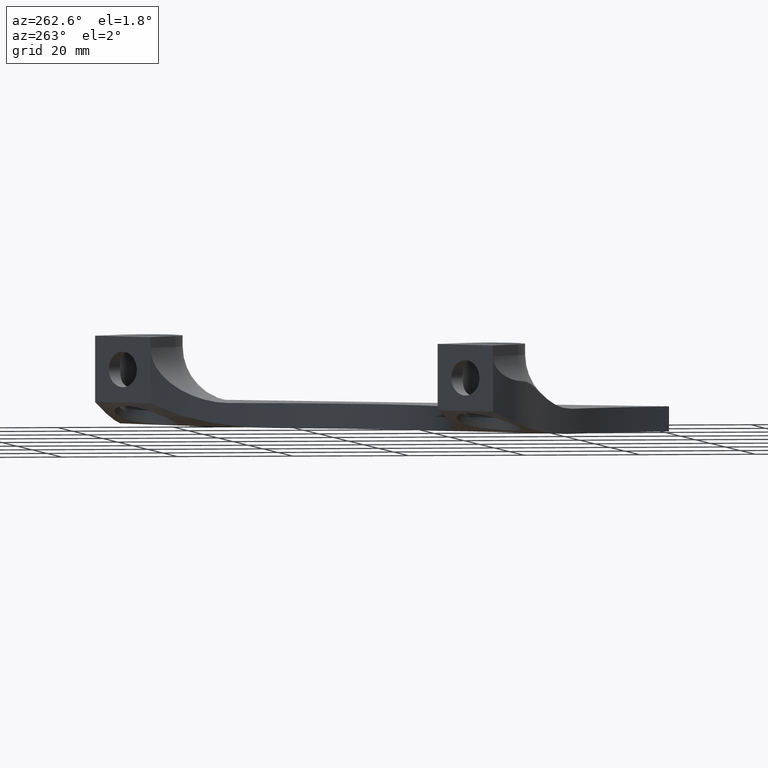
[diagram: clean part render]
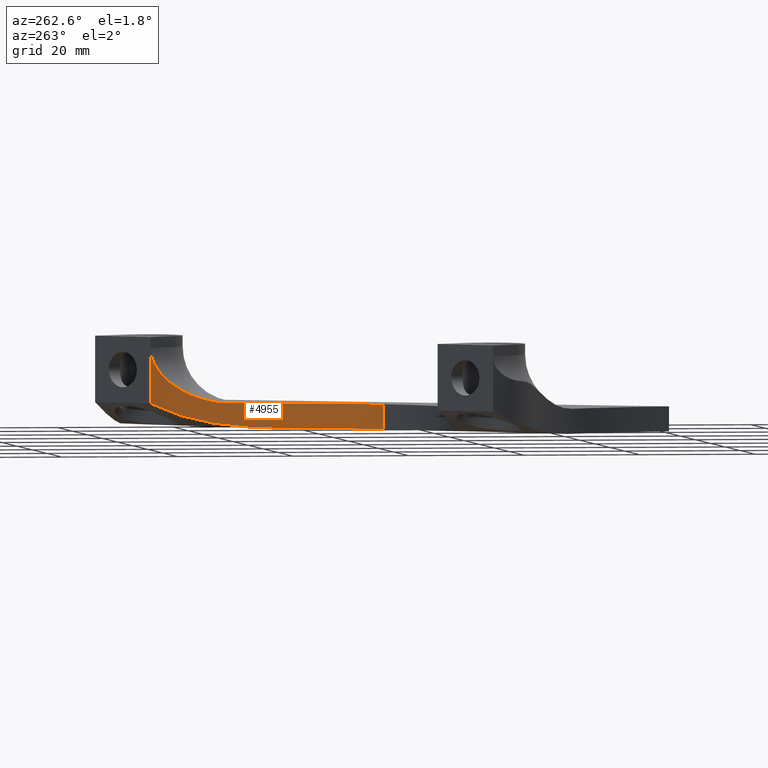
[diagram: same view with one face highlighted and labeled with its STEP entity id]
A machine part, auxiliary view. The second image highlights one B-rep face of the part: STEP entity #4955.
In plain terms, the highlighted cylindrical surface (partial cylindrical patch) has radius 50 mm, axis along (-0, -0, -1).
Its self-contained STEP definition (entity closure, byte-faithful):
#962 = CARTESIAN_POINT ( 'NONE',  ( 13.50161817136406100, 92.55441183806422600, 135.9580073209098100 ) ) ;
#967 = DIRECTION ( 'NONE',  ( -0.0000000000000000000, -0.0000000000000000000, -1.000000000000000000 ) ) ;
#1343 = B_SPLINE_CURVE_WITH_KNOTS ( 'NONE', 3,
 ( #3189, #3188, #3183, #3182, #3181, #3180, #3179, #3178, #3177, #3176, #3175, #3174, #3173, #3172, #3171, #3170 ),
 .UNSPECIFIED., .F., .F.,
 ( 4, 2, 2, 2, 2, 2, 2, 4 ),
 ( 5.922257288623482500E-017, 0.003299086747292524400, 0.004948630120938737200, 0.006598173494584950800, 0.01319634698916992400, 0.01649543373646240900, 0.01979452048375489300, 0.02639269397833986600 ),
 .UNSPECIFIED. ) ;
#1344 = B_SPLINE_CURVE_WITH_KNOTS ( 'NONE', 3,
 ( #3769, #3194, #3193, #3192, #3191, #3190 ),
 .UNSPECIFIED., .F., .F.,
 ( 4, 2, 4 ),
 ( 0.009622546753036002500, 0.01176079840781700900, 0.01389905006259801700 ),
 .UNSPECIFIED. ) ;
#1345 = B_SPLINE_CURVE_WITH_KNOTS ( 'NONE', 3,
 ( #3640, #3635, #3634, #3633, #3632, #3631, #3630, #3629, #3628, #3627, #4085, #3204, #3203, #3202, #3201, #3200, #3199, #3198, #3197, #3196 ),
 .UNSPECIFIED., .F., .F.,
 ( 4, 2, 2, 2, 2, 2, 2, 2, 2, 4 ),
 ( 1.734723475976807100E-018, 0.001707270467940434800, 0.002560905701910651200, 0.003414540935880867800, 0.004268176169851084800, 0.005121811403821300600, 0.006829081871761707800, 0.008536352339702115900, 0.01024362280764252100, 0.01365816374352333600 ),
 .UNSPECIFIED. ) ;
#1442 = CARTESIAN_POINT ( 'NONE',  ( 3.387647492871584300, 53.63105172415416900, 135.9580073209098100 ) ) ;
#1446 = DIRECTION ( 'NONE',  ( -0.0000000000000000000, -0.0000000000000000000, -1.000000000000000000 ) ) ;
#1447 = DIRECTION ( 'NONE',  ( -0.0000000000000000000, -0.0000000000000000000, -1.000000000000000000 ) ) ;
#1448 = DIRECTION ( 'NONE',  ( -1.000000000000000000, 0.0000000000000000000, 0.0000000000000000000 ) ) ;
#1453 = CARTESIAN_POINT ( 'NONE',  ( -35.86250899681252900, 84.60564156058796900, 135.9580073209098100 ) ) ;
#2091 = ORIENTED_EDGE ( 'NONE', *, *, #4523, .F. ) ;
#2098 = ORIENTED_EDGE ( 'NONE', *, *, #4524, .T. ) ;
#2100 = ORIENTED_EDGE ( 'NONE', *, *, #4561, .T. ) ;
#2104 = ORIENTED_EDGE ( 'NONE', *, *, #4525, .T. ) ;
#2118 = ORIENTED_EDGE ( 'NONE', *, *, #4564, .F. ) ;
#2147 = ORIENTED_EDGE ( 'NONE', *, *, #4429, .T. ) ;
#2149 = ORIENTED_EDGE ( 'NONE', *, *, #4522, .F. ) ;
#2166 = CARTESIAN_POINT ( 'NONE',  ( 13.50161817136420300, 92.55441183806409800, 0.0000000000000000000 ) ) ;
#2225 = CARTESIAN_POINT ( 'NONE',  ( 13.50161817136407500, 92.55441183806422600, 9.525000000000003900 ) ) ;
#2245 = CARTESIAN_POINT ( 'NONE',  ( 3.387647492871584300, 53.63105172415416900, -4.299999999999999800 ) ) ;
#2252 = CARTESIAN_POINT ( 'NONE',  ( 3.387647492871580700, 53.63105172415416900, -3.330635217210329800E-016 ) ) ;
#2261 = CARTESIAN_POINT ( 'NONE',  ( 11.02922432099349400, 67.25152543640119500, -4.299999999999999800 ) ) ;
#2263 = CARTESIAN_POINT ( 'NONE',  ( 14.11972925908475900, 83.27302798917340000, 0.6271651568615626000 ) ) ;
#2268 = CARTESIAN_POINT ( 'NONE',  ( 13.83335568326676500, 79.09918773809502600, 2.860362691553911700E-015 ) ) ;
#2339 = EDGE_LOOP ( 'NONE', ( #2147, #2104, #2098, #2118, #2100, #2091, #2149 ) ) ;
#2471 = CYLINDRICAL_SURFACE ( 'NONE', #4457, 49.99999999999999300 ) ;
#2475 = VECTOR ( 'NONE', #1446, 1000.000000000000000 ) ;
#2476 = FACE_OUTER_BOUND ( 'NONE', #2339, .T. ) ;
#2479 = LINE ( 'NONE', #1442, #2475 ) ;
#2480 = CIRCLE ( 'NONE', #4461, 49.99999999999998600 ) ;
#2499 = CIRCLE ( 'NONE', #4471, 50.00000000000000000 ) ;
#2542 = LINE ( 'NONE', #962, #2543 ) ;
#2543 = VECTOR ( 'NONE', #967, 1000.000000000000000 ) ;
#2972 = VERTEX_POINT ( 'NONE', #2245 ) ;
#2978 = VERTEX_POINT ( 'NONE', #2252 ) ;
#3002 = VERTEX_POINT ( 'NONE', #2261 ) ;
#3003 = VERTEX_POINT ( 'NONE', #2263 ) ;
#3011 = VERTEX_POINT ( 'NONE', #2225 ) ;
#3012 = VERTEX_POINT ( 'NONE', #2268 ) ;
#3022 = VERTEX_POINT ( 'NONE', #2166 ) ;
#3170 = CARTESIAN_POINT ( 'NONE',  ( 11.02922432099349400, 67.25152543640119500, -4.299999999999999800 ) ) ;
#3171 = CARTESIAN_POINT ( 'NONE',  ( 11.79339193577216700, 69.31634647055133800, -4.299999999999998900 ) ) ;
#3172 = CARTESIAN_POINT ( 'NONE',  ( 12.41669218205788100, 71.41789094646830400, -4.287272086191633100 ) ) ;
#3173 = CARTESIAN_POINT ( 'NONE',  ( 13.14292105721576900, 74.62228874691589900, -4.166334218729367000 ) ) ;
#3174 = CARTESIAN_POINT ( 'NONE',  ( 13.35026627949793900, 75.70014540271124300, -4.108511415770267100 ) ) ;
#3175 = CARTESIAN_POINT ( 'NONE',  ( 13.69370480254326100, 77.86866997929638500, -3.940258933577623700 ) ) ;
#3176 = CARTESIAN_POINT ( 'NONE',  ( 13.82840278778386400, 78.95021507407521700, -3.830455946482061300 ) ) ;
#3177 = CARTESIAN_POINT ( 'NONE',  ( 14.12558904111289200, 82.18235753548496800, -3.401268820469876000 ) ) ;
#3178 = CARTESIAN_POINT ( 'NONE',  ( 14.18128003327949000, 84.32036443233690200, -2.981599742886952100 ) ) ;
#3179 = CARTESIAN_POINT ( 'NONE',  ( 14.08486477120804300, 86.95909464024912000, -2.222748765670757200 ) ) ;
#3180 = CARTESIAN_POINT ( 'NONE',  ( 14.05717645038120800, 87.48629859149269800, -2.058889107362701100 ) ) ;
#3181 = CARTESIAN_POINT ( 'NONE',  ( 13.98604967599390600, 88.52920860095338200, -1.708934017679355900 ) ) ;
#3182 = CARTESIAN_POINT ( 'NONE',  ( 13.94263883687849900, 89.04530564911397100, -1.522788924786337800 ) ) ;
#3183 = CARTESIAN_POINT ( 'NONE',  ( 13.79020989352380300, 90.57732294997087800, -0.9299953783671653900 ) ) ;
#3185 = DIRECTION ( 'NONE',  ( 1.000000000000000000, 0.0000000000000000000, 0.0000000000000000000 ) ) ;
#3186 = DIRECTION ( 'NONE',  ( -0.0000000000000000000, -0.0000000000000000000, -1.000000000000000000 ) ) ;
#3187 = CARTESIAN_POINT ( 'NONE',  ( -35.86250899681252900, 84.60564156058796900, -4.299999999999999800 ) ) ;
#3188 = CARTESIAN_POINT ( 'NONE',  ( 13.65900802799741600, 91.57697600502196200, -0.4890017245015457800 ) ) ;
#3189 = CARTESIAN_POINT ( 'NONE',  ( 13.50161817136420300, 92.55441183806409800, 0.0000000000000000000 ) ) ;
#3190 = CARTESIAN_POINT ( 'NONE',  ( 13.83335568326676500, 79.09918773809502600, 2.860362691553911700E-015 ) ) ;
#3191 = CARTESIAN_POINT ( 'NONE',  ( 13.91121239909266900, 79.80184628002534500, -2.258189837379964700E-015 ) ) ;
#3192 = CARTESIAN_POINT ( 'NONE',  ( 13.97359974893285500, 80.50084452264465500, 0.06068121072522656600 ) ) ;
#3193 = CARTESIAN_POINT ( 'NONE',  ( 14.06875428047918500, 81.89343928674335900, 0.2788183893880391600 ) ) ;
#3194 = CARTESIAN_POINT ( 'NONE',  ( 14.10149557188344900, 82.58913843744717600, 0.4375019017044350900 ) ) ;
#3196 = CARTESIAN_POINT ( 'NONE',  ( 14.11972925908475900, 83.27302798917340000, 0.6271651568615626000 ) ) ;
#3197 = CARTESIAN_POINT ( 'NONE',  ( 14.14929892167664600, 84.38209512800317200, 0.9347430153144692400 ) ) ;
#3198 = CARTESIAN_POINT ( 'NONE',  ( 14.14081010131624600, 85.44629533891971100, 1.342319683538194800 ) ) ;
#3199 = CARTESIAN_POINT ( 'NONE',  ( 14.08397107251848000, 86.97392861772425500, 2.107365951750405300 ) ) ;
#3200 = CARTESIAN_POINT ( 'NONE',  ( 14.05762579370145500, 87.47188606967020500, 2.388638645891186600 ) ) ;
#3201 = CARTESIAN_POINT ( 'NONE',  ( 13.99263436131428100, 88.43968587821819900, 3.009976997566904600 ) ) ;
#3202 = CARTESIAN_POINT ( 'NONE',  ( 13.95451134026898300, 88.90188569264913100, 3.345058033734472400 ) ) ;
#3203 = CARTESIAN_POINT ( 'NONE',  ( 13.87127550937197600, 89.77709276889163400, 4.071200053435068100 ) ) ;
#3204 = CARTESIAN_POINT ( 'NONE',  ( 13.82612295303314900, 90.19026093099957100, 4.462070988022066600 ) ) ;
#3525 = CARTESIAN_POINT ( 'NONE',  ( -35.86250899681252900, 84.60564156058796900, 0.0000000000000000000 ) ) ;
#3526 = DIRECTION ( 'NONE',  ( 8.049322437400349700E-017, 8.049322437400452000E-017, 1.000000000000000000 ) ) ;
#3527 = DIRECTION ( 'NONE',  ( 7.077671781985375300E-015, 1.000000000000000000, -8.049322437400511200E-017 ) ) ;
#3627 = CARTESIAN_POINT ( 'NONE',  ( 13.73400304215774000, 90.94724511075513400, 5.325268080946633700 ) ) ;
#3628 = CARTESIAN_POINT ( 'NONE',  ( 13.68892212595893700, 91.29037160034666000, 5.784907503885021300 ) ) ;
#3629 = CARTESIAN_POINT ( 'NONE',  ( 13.66699753353464600, 91.45034708841691900, 6.021872377824215600 ) ) ;
#3630 = CARTESIAN_POINT ( 'NONE',  ( 13.62550633069867200, 91.74415329948790500, 6.512005472769333300 ) ) ;
#3631 = CARTESIAN_POINT ( 'NONE',  ( 13.60593713440697300, 91.87800197281188700, 6.765162486957637900 ) ) ;
#3632 = CARTESIAN_POINT ( 'NONE',  ( 13.57047440009182200, 92.11527145053770500, 7.290413336815342800 ) ) ;
#3633 = CARTESIAN_POINT ( 'NONE',  ( 13.55471337737565200, 92.21781014797426200, 7.561370886112703400 ) ) ;
#3634 = CARTESIAN_POINT ( 'NONE',  ( 13.51614760463410800, 92.46542421454398700, 8.381080237213677000 ) ) ;
#3635 = CARTESIAN_POINT ( 'NONE',  ( 13.50161817136406500, 92.55441183806424000, 8.943620872490900100 ) ) ;
#3640 = CARTESIAN_POINT ( 'NONE',  ( 13.50161817136407500, 92.55441183806422600, 9.525000000000003900 ) ) ;
#3769 = CARTESIAN_POINT ( 'NONE',  ( 14.11972925908475900, 83.27302798917340000, 0.6271651568615626000 ) ) ;
#4085 = CARTESIAN_POINT ( 'NONE',  ( 13.75723195949800200, 90.76342826268631800, 5.101995527698358400 ) ) ;
#4429 = EDGE_CURVE ( 'NONE', #3011, #3022, #2542, .T. ) ;
#4457 = AXIS2_PLACEMENT_3D ( 'NONE', #1453, #1447, #1448 ) ;
#4461 = AXIS2_PLACEMENT_3D ( 'NONE', #3525, #3526, #3527 ) ;
#4471 = AXIS2_PLACEMENT_3D ( 'NONE', #3187, #3186, #3185 ) ;
#4522 = EDGE_CURVE ( 'NONE', #3011, #3003, #1345, .T. ) ;
#4523 = EDGE_CURVE ( 'NONE', #3003, #3012, #1344, .T. ) ;
#4524 = EDGE_CURVE ( 'NONE', #3002, #2972, #2499, .T. ) ;
#4525 = EDGE_CURVE ( 'NONE', #3022, #3002, #1343, .T. ) ;
#4561 = EDGE_CURVE ( 'NONE', #2978, #3012, #2480, .T. ) ;
#4564 = EDGE_CURVE ( 'NONE', #2978, #2972, #2479, .T. ) ;
#4955 = ADVANCED_FACE ( 'NONE', ( #2476 ), #2471, .F. ) ;